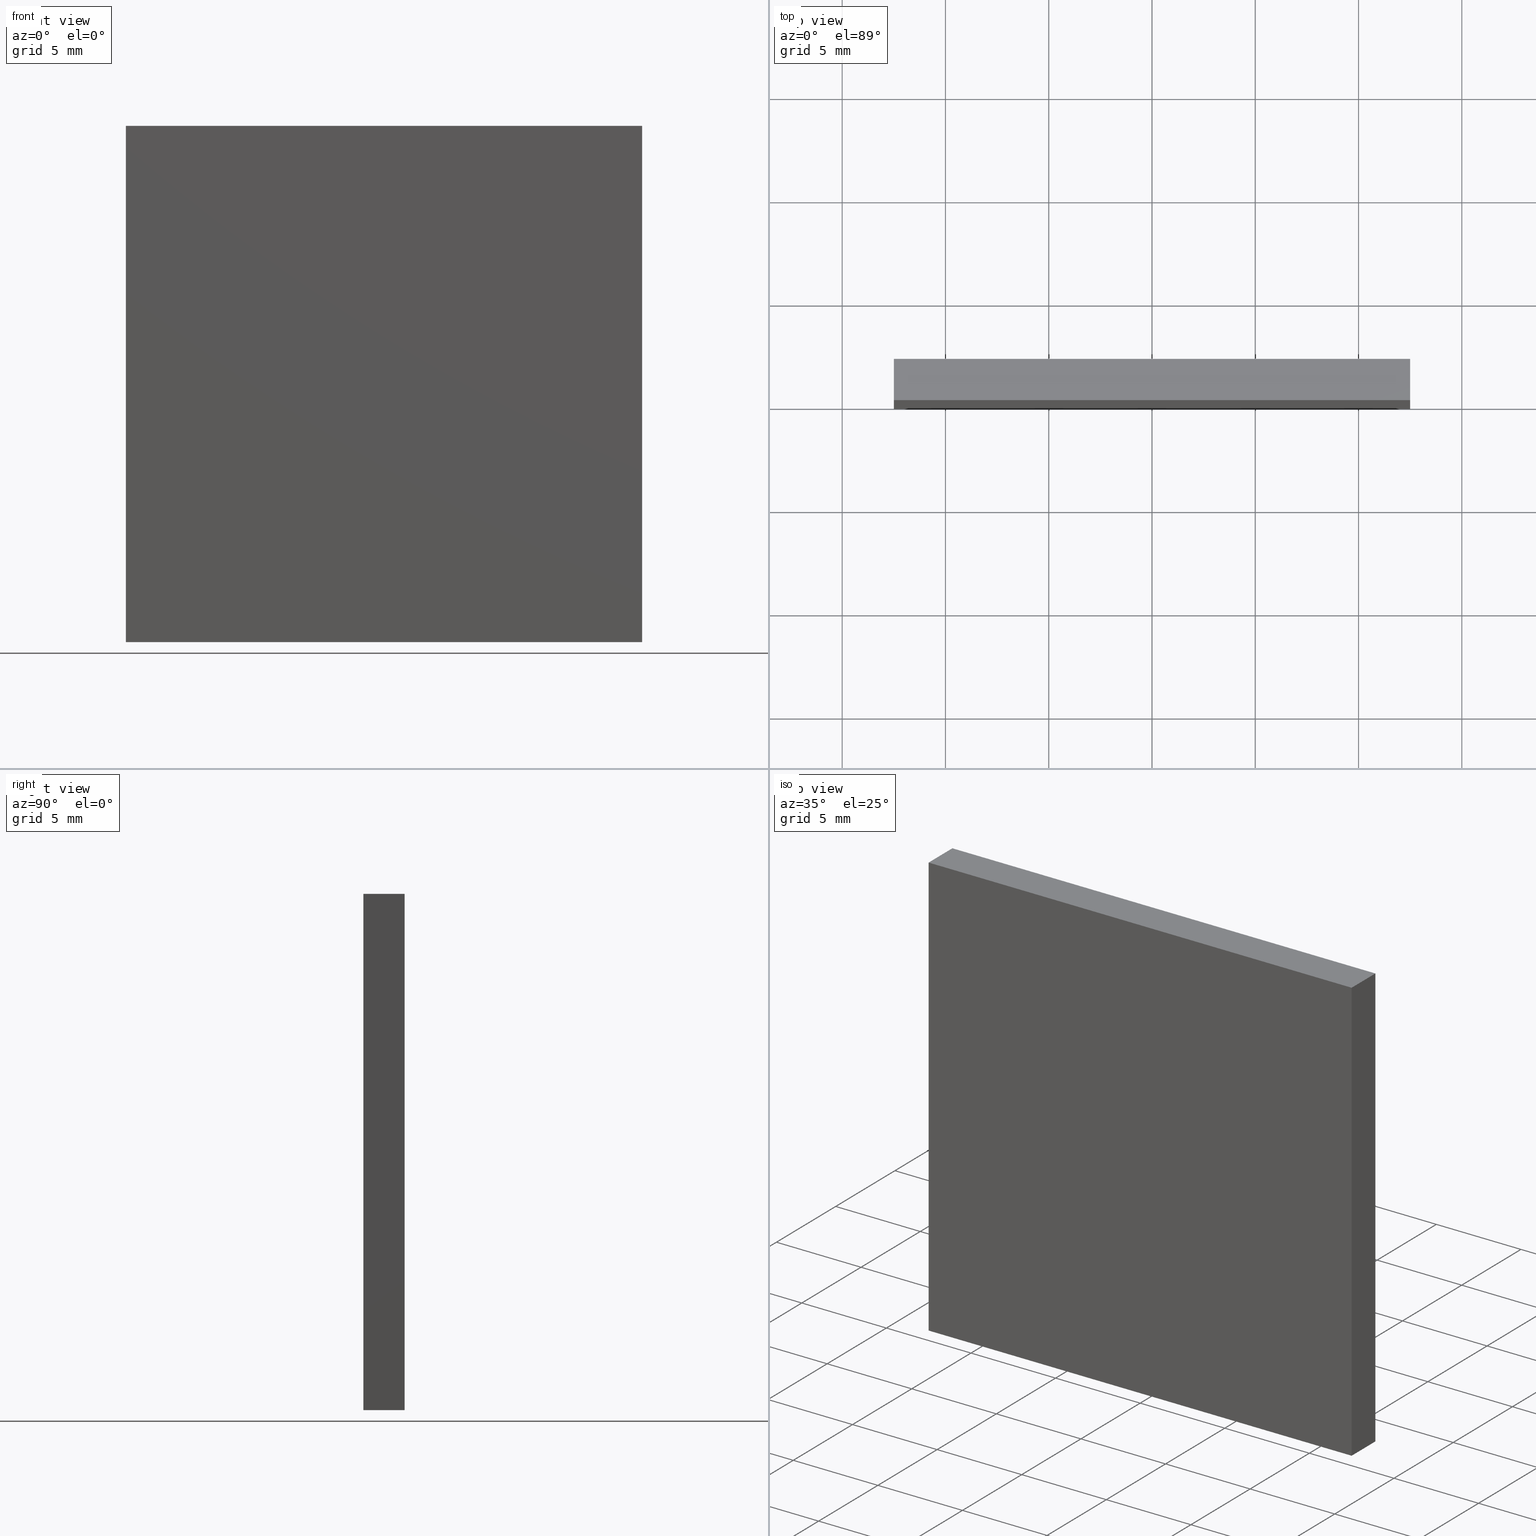
[diagram: canonical four-view strip — front | top / right | iso, engineering-drawing reading convention]
A machine part, canonical four-view strip (front | top / right | iso — engineering-drawing reading convention). The complete STEP part file that produces these views, byte-faithful:
ISO-10303-21;
HEADER;
FILE_DESCRIPTION (( 'STEP AP214' ),
    '1' );
FILE_NAME ('258512.STEP',
    '2019-08-07T02:19:36',
    ( 'user' ),
    ( '΢���й�' ),
    'SwSTEP 2.0',
    'SolidWorks 2016',
    '' );
FILE_SCHEMA (( 'AUTOMOTIVE_DESIGN' ));
ENDSEC;

DATA;
#1 = AXIS2_PLACEMENT_3D ( 'NONE', #153, #189, #122 ) ;
#2 = DIRECTION ( 'NONE',  ( -1.387778780781445700E-016, -0.0000000000000000000, -1.000000000000000000 ) ) ;
#3 = EDGE_LOOP ( 'NONE', ( #155, #35, #102, #99 ) ) ;
#4 = CARTESIAN_POINT ( 'NONE',  ( 12.50000000000000200, 0.0000000000000000000, -12.50000000000000000 ) ) ;
#5 =( NAMED_UNIT ( * ) SI_UNIT ( $, .STERADIAN. ) SOLID_ANGLE_UNIT ( ) );
#6 = FILL_AREA_STYLE_COLOUR ( '', #76 ) ;
#7 = ORIENTED_EDGE ( 'NONE', *, *, #62, .T. ) ;
#8 = STYLED_ITEM ( 'NONE', ( #149 ), #94 ) ;
#9 = CLOSED_SHELL ( 'NONE', ( #50, #24, #133, #36, #23, #22 ) ) ;
#10 = VECTOR ( 'NONE', #32, 1000.000000000000000 ) ;
#11 = FACE_OUTER_BOUND ( 'NONE', #67, .T. ) ;
#12 = LINE ( 'NONE', #126, #49 ) ;
#13 = SURFACE_SIDE_STYLE ('',( #20 ) ) ;
#14 = CARTESIAN_POINT ( 'NONE',  ( 12.50000000000000200, 2.000000000000000000, -12.50000000000000000 ) ) ;
#15 = DIRECTION ( 'NONE',  ( 0.0000000000000000000, 1.000000000000000000, 0.0000000000000000000 ) ) ;
#16 = ORIENTED_EDGE ( 'NONE', *, *, #84, .F. ) ;
#17 = CARTESIAN_POINT ( 'NONE',  ( 0.0000000000000000000, 0.0000000000000000000, 0.0000000000000000000 ) ) ;
#18 =( LENGTH_UNIT ( ) NAMED_UNIT ( * ) SI_UNIT ( .MILLI., .METRE. ) );
#19 = EDGE_LOOP ( 'NONE', ( #134, #86, #16, #187 ) ) ;
#20 = SURFACE_STYLE_FILL_AREA ( #121 ) ;
#21 = AXIS2_PLACEMENT_3D ( 'NONE', #14, #186, #72 ) ;
#22 = ADVANCED_FACE ( 'NONE', ( #44 ), #157, .F. ) ;
#23 = ADVANCED_FACE ( 'NONE', ( #34 ), #30, .T. ) ;
#24 = ADVANCED_FACE ( 'NONE', ( #87 ), #90, .F. ) ;
#25 = FACE_OUTER_BOUND ( 'NONE', #3, .T. ) ;
#26 = CARTESIAN_POINT ( 'NONE',  ( 12.50000000000000500, 2.000000000000000000, 12.50000000000000000 ) ) ;
#27 = CARTESIAN_POINT ( 'NONE',  ( -12.49999999999999800, 0.0000000000000000000, -12.50000000000000000 ) ) ;
#28 = LINE ( 'NONE', #27, #112 ) ;
#29 = CARTESIAN_POINT ( 'NONE',  ( -12.49999999999999500, 2.000000000000000000, 12.50000000000000000 ) ) ;
#30 = PLANE ( 'NONE',  #161 ) ;
#31 = PRESENTATION_LAYER_ASSIGNMENT (  '', '', ( #8 ) ) ;
#32 = DIRECTION ( 'NONE',  ( -0.0000000000000000000, -1.000000000000000000, -0.0000000000000000000 ) ) ;
#33 = ADVANCED_BREP_SHAPE_REPRESENTATION ( '258512', ( #94, #108 ), #66 ) ;
#34 = FACE_OUTER_BOUND ( 'NONE', #73, .T. ) ;
#35 = ORIENTED_EDGE ( 'NONE', *, *, #184, .F. ) ;
#36 = ADVANCED_FACE ( 'NONE', ( #11 ), #139, .F. ) ;
#37 = MECHANICAL_DESIGN_GEOMETRIC_PRESENTATION_REPRESENTATION (  '', ( #8 ), #47 ) ;
#38 = ORIENTED_EDGE ( 'NONE', *, *, #158, .T. ) ;
#39 = CARTESIAN_POINT ( 'NONE',  ( -12.49999999999999500, 2.000000000000000000, 12.50000000000000000 ) ) ;
#40 = FILL_AREA_STYLE_COLOUR ( '', #188 ) ;
#41 = STYLED_ITEM ( 'NONE', ( #85 ), #33 ) ;
#42 = CARTESIAN_POINT ( 'NONE',  ( -12.49999999999999800, 2.000000000000000000, -12.50000000000000000 ) ) ;
#43 = DIRECTION ( 'NONE',  ( 0.0000000000000000000, 1.000000000000000000, 0.0000000000000000000 ) ) ;
#44 = FACE_OUTER_BOUND ( 'NONE', #19, .T. ) ;
#45 = APPLICATION_PROTOCOL_DEFINITION ( 'draft international standard', 'automotive_design', 1998, #145 ) ;
#46 = VERTEX_POINT ( 'NONE', #42 ) ;
#47 =( GEOMETRIC_REPRESENTATION_CONTEXT ( 3 ) GLOBAL_UNCERTAINTY_ASSIGNED_CONTEXT ( ( #128 ) ) GLOBAL_UNIT_ASSIGNED_CONTEXT ( ( #202, #183, #70 ) ) REPRESENTATION_CONTEXT ( 'NONE', 'WORKASPACE' ) );
#48 = LINE ( 'NONE', #137, #132 ) ;
#49 = VECTOR ( 'NONE', #2, 1000.000000000000000 ) ;
#50 = ADVANCED_FACE ( 'NONE', ( #25 ), #93, .F. ) ;
#51 = PRESENTATION_LAYER_ASSIGNMENT (  '', '', ( #41 ) ) ;
#52 = DIRECTION ( 'NONE',  ( -1.000000000000000000, -0.0000000000000000000, -0.0000000000000000000 ) ) ;
#53 = DIRECTION ( 'NONE',  ( 1.387778780781445700E-016, 0.0000000000000000000, 1.000000000000000000 ) ) ;
#54 = CARTESIAN_POINT ( 'NONE',  ( -12.49999999999999500, 2.000000000000000000, 12.50000000000000000 ) ) ;
#55 = VECTOR ( 'NONE', #152, 1000.000000000000000 ) ;
#56 = DIRECTION ( 'NONE',  ( -0.0000000000000000000, -1.000000000000000000, -0.0000000000000000000 ) ) ;
#57 = PRODUCT_CONTEXT ( 'NONE', #148, 'mechanical' ) ;
#58 = VERTEX_POINT ( 'NONE', #106 ) ;
#59 = VECTOR ( 'NONE', #138, 1000.000000000000000 ) ;
#60 = MECHANICAL_DESIGN_GEOMETRIC_PRESENTATION_REPRESENTATION (  '', ( #41 ), #74 ) ;
#61 =( NAMED_UNIT ( * ) PLANE_ANGLE_UNIT ( ) SI_UNIT ( $, .RADIAN. ) );
#62 = EDGE_CURVE ( 'NONE', #131, #96, #65, .T. ) ;
#63 = LINE ( 'NONE', #168, #68 ) ;
#64 = EDGE_CURVE ( 'NONE', #179, #165, #28, .T. ) ;
#65 = LINE ( 'NONE', #29, #59 ) ;
#66 =( GEOMETRIC_REPRESENTATION_CONTEXT ( 3 ) GLOBAL_UNCERTAINTY_ASSIGNED_CONTEXT ( ( #97 ) ) GLOBAL_UNIT_ASSIGNED_CONTEXT ( ( #194, #61, #178 ) ) REPRESENTATION_CONTEXT ( 'NONE', 'WORKASPACE' ) );
#67 = EDGE_LOOP ( 'NONE', ( #113, #77, #182, #125 ) ) ;
#68 = VECTOR ( 'NONE', #52, 1000.000000000000000 ) ;
#69 = CARTESIAN_POINT ( 'NONE',  ( 12.50000000000000200, 2.000000000000000000, -12.50000000000000000 ) ) ;
#70 =( NAMED_UNIT ( * ) SI_UNIT ( $, .STERADIAN. ) SOLID_ANGLE_UNIT ( ) );
#71 = EDGE_CURVE ( 'NONE', #131, #58, #101, .T. ) ;
#72 = DIRECTION ( 'NONE',  ( 1.387778780781445700E-016, 0.0000000000000000000, 1.000000000000000000 ) ) ;
#73 = EDGE_LOOP ( 'NONE', ( #124, #38, #81, #7 ) ) ;
#74 =( GEOMETRIC_REPRESENTATION_CONTEXT ( 3 ) GLOBAL_UNCERTAINTY_ASSIGNED_CONTEXT ( ( #127 ) ) GLOBAL_UNIT_ASSIGNED_CONTEXT ( ( #18, #98, #5 ) ) REPRESENTATION_CONTEXT ( 'NONE', 'WORKASPACE' ) );
#75 = DIRECTION ( 'NONE',  ( 0.0000000000000000000, 0.0000000000000000000, 1.000000000000000000 ) ) ;
#76 = COLOUR_RGB ( '',1.000000000000000000, 1.000000000000000000, 1.000000000000000000 ) ;
#77 = ORIENTED_EDGE ( 'NONE', *, *, #196, .F. ) ;
#78 = LINE ( 'NONE', #176, #82 ) ;
#79 = DIRECTION ( 'NONE',  ( 0.0000000000000000000, 0.0000000000000000000, 1.000000000000000000 ) ) ;
#80 = AXIS2_PLACEMENT_3D ( 'NONE', #151, #103, #201 ) ;
#81 = ORIENTED_EDGE ( 'NONE', *, *, #89, .T. ) ;
#82 = VECTOR ( 'NONE', #115, 1000.000000000000000 ) ;
#83 = VERTEX_POINT ( 'NONE', #185 ) ;
#84 = EDGE_CURVE ( 'NONE', #165, #58, #192, .T. ) ;
#85 = PRESENTATION_STYLE_ASSIGNMENT (( #114 ) ) ;
#86 = ORIENTED_EDGE ( 'NONE', *, *, #163, .F. ) ;
#87 = FACE_OUTER_BOUND ( 'NONE', #162, .T. ) ;
#88 = CARTESIAN_POINT ( 'NONE',  ( -12.49999999999999800, 0.0000000000000000000, -12.50000000000000000 ) ) ;
#89 = EDGE_CURVE ( 'NONE', #46, #131, #107, .T. ) ;
#90 = PLANE ( 'NONE',  #181 ) ;
#91 = VECTOR ( 'NONE', #111, 1000.000000000000000 ) ;
#92 = CARTESIAN_POINT ( 'NONE',  ( -12.49999999999999800, 0.0000000000000000000, -12.50000000000000000 ) ) ;
#93 = PLANE ( 'NONE',  #21 ) ;
#94 = MANIFOLD_SOLID_BREP ( '͹̨-����1', #9 ) ;
#95 = ORIENTED_EDGE ( 'NONE', *, *, #89, .F. ) ;
#96 = VERTEX_POINT ( 'NONE', #26 ) ;
#97 = UNCERTAINTY_MEASURE_WITH_UNIT (LENGTH_MEASURE( 1.000000000000000100E-005 ), #194, 'distance_accuracy_value', 'NONE');
#98 =( NAMED_UNIT ( * ) PLANE_ANGLE_UNIT ( ) SI_UNIT ( $, .RADIAN. ) );
#99 = ORIENTED_EDGE ( 'NONE', *, *, #196, .T. ) ;
#100 = EDGE_CURVE ( 'NONE', #83, #179, #48, .T. ) ;
#101 = LINE ( 'NONE', #54, #197 ) ;
#102 = ORIENTED_EDGE ( 'NONE', *, *, #169, .F. ) ;
#103 = DIRECTION ( 'NONE',  ( 1.000000000000000000, 0.0000000000000000000, -1.387778780781445700E-016 ) ) ;
#104 = SURFACE_STYLE_USAGE ( .BOTH. , #13 ) ;
#105 = DIRECTION ( 'NONE',  ( -0.0000000000000000000, -1.000000000000000000, -0.0000000000000000000 ) ) ;
#106 = CARTESIAN_POINT ( 'NONE',  ( -12.49999999999999500, 0.0000000000000000000, 12.50000000000000000 ) ) ;
#107 = LINE ( 'NONE', #170, #55 ) ;
#108 = AXIS2_PLACEMENT_3D ( 'NONE', #17, #79, #159 ) ;
#109 = DIRECTION ( 'NONE',  ( 0.0000000000000000000, -0.0000000000000000000, 1.000000000000000000 ) ) ;
#110 = PRODUCT ( '258512', '258512', '', ( #57 ) ) ;
#111 = DIRECTION ( 'NONE',  ( 1.000000000000000000, 0.0000000000000000000, 0.0000000000000000000 ) ) ;
#112 = VECTOR ( 'NONE', #171, 1000.000000000000000 ) ;
#113 = ORIENTED_EDGE ( 'NONE', *, *, #163, .T. ) ;
#114 = SURFACE_STYLE_USAGE ( .BOTH. , #129 ) ;
#115 = DIRECTION ( 'NONE',  ( -0.0000000000000000000, -1.000000000000000000, -0.0000000000000000000 ) ) ;
#116 = PRODUCT_DEFINITION_SHAPE ( 'NONE', 'NONE',  #118 ) ;
#117 = EDGE_LOOP ( 'NONE', ( #175, #174, #95, #135 ) ) ;
#118 = PRODUCT_DEFINITION ( 'δ֪', '', #130, #190 ) ;
#119 = ORIENTED_EDGE ( 'NONE', *, *, #158, .F. ) ;
#120 = PLANE ( 'NONE',  #80 ) ;
#121 = FILL_AREA_STYLE ('',( #40 ) ) ;
#122 = DIRECTION ( 'NONE',  ( -1.000000000000000000, 0.0000000000000000000, -0.0000000000000000000 ) ) ;
#123 = CARTESIAN_POINT ( 'NONE',  ( -12.49999999999999800, 2.000000000000000000, -12.50000000000000000 ) ) ;
#124 = ORIENTED_EDGE ( 'NONE', *, *, #169, .T. ) ;
#125 = ORIENTED_EDGE ( 'NONE', *, *, #71, .T. ) ;
#126 = CARTESIAN_POINT ( 'NONE',  ( 12.50000000000000200, 2.000000000000000000, -12.50000000000000000 ) ) ;
#127 = UNCERTAINTY_MEASURE_WITH_UNIT (LENGTH_MEASURE( 1.000000000000000100E-005 ), #18, 'distance_accuracy_value', 'NONE');
#128 = UNCERTAINTY_MEASURE_WITH_UNIT (LENGTH_MEASURE( 1.000000000000000100E-005 ), #202, 'distance_accuracy_value', 'NONE');
#129 = SURFACE_SIDE_STYLE ('',( #164 ) ) ;
#130 = PRODUCT_DEFINITION_FORMATION_WITH_SPECIFIED_SOURCE ( '�κ�', '', #110, .NOT_KNOWN. ) ;
#131 = VERTEX_POINT ( 'NONE', #39 ) ;
#132 = VECTOR ( 'NONE', #136, 1000.000000000000000 ) ;
#133 = ADVANCED_FACE ( 'NONE', ( #200 ), #120, .F. ) ;
#134 = ORIENTED_EDGE ( 'NONE', *, *, #100, .F. ) ;
#135 = ORIENTED_EDGE ( 'NONE', *, *, #177, .T. ) ;
#136 = DIRECTION ( 'NONE',  ( -1.387778780781445700E-016, -0.0000000000000000000, -1.000000000000000000 ) ) ;
#137 = CARTESIAN_POINT ( 'NONE',  ( 12.50000000000000200, 0.0000000000000000000, -12.50000000000000000 ) ) ;
#138 = DIRECTION ( 'NONE',  ( 1.000000000000000000, 0.0000000000000000000, 0.0000000000000000000 ) ) ;
#139 = PLANE ( 'NONE',  #1 ) ;
#140 = VERTEX_POINT ( 'NONE', #69 ) ;
#141 = PRODUCT_RELATED_PRODUCT_CATEGORY ( 'part', '', ( #110 ) ) ;
#142 = CARTESIAN_POINT ( 'NONE',  ( 0.0000000000000000000, 0.0000000000000000000, 0.0000000000000000000 ) ) ;
#143 = CARTESIAN_POINT ( 'NONE',  ( 12.50000000000000200, 2.000000000000000000, -12.50000000000000000 ) ) ;
#144 = LINE ( 'NONE', #150, #91 ) ;
#145 = APPLICATION_CONTEXT ( 'automotive_design' ) ;
#146 = ORIENTED_EDGE ( 'NONE', *, *, #64, .T. ) ;
#147 = VECTOR ( 'NONE', #53, 1000.000000000000000 ) ;
#148 = APPLICATION_CONTEXT ( 'automotive_design' ) ;
#149 = PRESENTATION_STYLE_ASSIGNMENT (( #104 ) ) ;
#150 = CARTESIAN_POINT ( 'NONE',  ( -12.49999999999999500, 0.0000000000000000000, 12.50000000000000000 ) ) ;
#151 = CARTESIAN_POINT ( 'NONE',  ( -12.49999999999999800, 2.000000000000000000, -12.50000000000000000 ) ) ;
#152 = DIRECTION ( 'NONE',  ( 1.387778780781445700E-016, 0.0000000000000000000, 1.000000000000000000 ) ) ;
#153 = CARTESIAN_POINT ( 'NONE',  ( -12.49999999999999500, 2.000000000000000000, 12.50000000000000000 ) ) ;
#154 = CARTESIAN_POINT ( 'NONE',  ( 0.0000000000000000000, 2.000000000000000000, 0.0000000000000000000 ) ) ;
#155 = ORIENTED_EDGE ( 'NONE', *, *, #100, .T. ) ;
#156 = VECTOR ( 'NONE', #56, 1000.000000000000000 ) ;
#157 = PLANE ( 'NONE',  #195 ) ;
#158 = EDGE_CURVE ( 'NONE', #140, #46, #63, .T. ) ;
#159 = DIRECTION ( 'NONE',  ( 1.000000000000000000, 0.0000000000000000000, 0.0000000000000000000 ) ) ;
#160 = APPLICATION_PROTOCOL_DEFINITION ( 'draft international standard', 'automotive_design', 1998, #148 ) ;
#161 = AXIS2_PLACEMENT_3D ( 'NONE', #154, #15, #109 ) ;
#162 = EDGE_LOOP ( 'NONE', ( #146, #180, #119, #198 ) ) ;
#163 = EDGE_CURVE ( 'NONE', #58, #83, #144, .T. ) ;
#164 = SURFACE_STYLE_FILL_AREA ( #193 ) ;
#165 = VERTEX_POINT ( 'NONE', #88 ) ;
#166 = SHAPE_DEFINITION_REPRESENTATION ( #116, #33 ) ;
#167 = LINE ( 'NONE', #191, #156 ) ;
#168 = CARTESIAN_POINT ( 'NONE',  ( -12.49999999999999800, 2.000000000000000000, -12.50000000000000000 ) ) ;
#169 = EDGE_CURVE ( 'NONE', #96, #140, #12, .T. ) ;
#170 = CARTESIAN_POINT ( 'NONE',  ( -12.49999999999999800, 2.000000000000000000, -12.50000000000000000 ) ) ;
#171 = DIRECTION ( 'NONE',  ( -1.000000000000000000, -0.0000000000000000000, -0.0000000000000000000 ) ) ;
#172 = DIRECTION ( 'NONE',  ( 1.000000000000000000, 0.0000000000000000000, -0.0000000000000000000 ) ) ;
#173 = DIRECTION ( 'NONE',  ( 0.0000000000000000000, -0.0000000000000000000, 1.000000000000000000 ) ) ;
#174 = ORIENTED_EDGE ( 'NONE', *, *, #71, .F. ) ;
#175 = ORIENTED_EDGE ( 'NONE', *, *, #84, .T. ) ;
#176 = CARTESIAN_POINT ( 'NONE',  ( 12.50000000000000500, 2.000000000000000000, 12.50000000000000000 ) ) ;
#177 = EDGE_CURVE ( 'NONE', #46, #165, #167, .T. ) ;
#178 =( NAMED_UNIT ( * ) SI_UNIT ( $, .STERADIAN. ) SOLID_ANGLE_UNIT ( ) );
#179 = VERTEX_POINT ( 'NONE', #4 ) ;
#180 = ORIENTED_EDGE ( 'NONE', *, *, #177, .F. ) ;
#181 = AXIS2_PLACEMENT_3D ( 'NONE', #123, #75, #172 ) ;
#182 = ORIENTED_EDGE ( 'NONE', *, *, #62, .F. ) ;
#183 =( NAMED_UNIT ( * ) PLANE_ANGLE_UNIT ( ) SI_UNIT ( $, .RADIAN. ) );
#184 = EDGE_CURVE ( 'NONE', #140, #179, #199, .T. ) ;
#185 = CARTESIAN_POINT ( 'NONE',  ( 12.50000000000000500, 0.0000000000000000000, 12.50000000000000000 ) ) ;
#186 = DIRECTION ( 'NONE',  ( -1.000000000000000000, 0.0000000000000000000, 1.387778780781445700E-016 ) ) ;
#187 = ORIENTED_EDGE ( 'NONE', *, *, #64, .F. ) ;
#188 = COLOUR_RGB ( '',1.000000000000000000, 1.000000000000000000, 1.000000000000000000 ) ;
#189 = DIRECTION ( 'NONE',  ( 0.0000000000000000000, 0.0000000000000000000, -1.000000000000000000 ) ) ;
#190 = PRODUCT_DEFINITION_CONTEXT ( 'detailed design', #145, 'design' ) ;
#191 = CARTESIAN_POINT ( 'NONE',  ( -12.49999999999999800, 2.000000000000000000, -12.50000000000000000 ) ) ;
#192 = LINE ( 'NONE', #92, #147 ) ;
#193 = FILL_AREA_STYLE ('',( #6 ) ) ;
#194 =( LENGTH_UNIT ( ) NAMED_UNIT ( * ) SI_UNIT ( .MILLI., .METRE. ) );
#195 = AXIS2_PLACEMENT_3D ( 'NONE', #142, #43, #173 ) ;
#196 = EDGE_CURVE ( 'NONE', #96, #83, #78, .T. ) ;
#197 = VECTOR ( 'NONE', #105, 1000.000000000000000 ) ;
#198 = ORIENTED_EDGE ( 'NONE', *, *, #184, .T. ) ;
#199 = LINE ( 'NONE', #143, #10 ) ;
#200 = FACE_OUTER_BOUND ( 'NONE', #117, .T. ) ;
#201 = DIRECTION ( 'NONE',  ( -1.387778780781445700E-016, 0.0000000000000000000, -1.000000000000000000 ) ) ;
#202 =( LENGTH_UNIT ( ) NAMED_UNIT ( * ) SI_UNIT ( .MILLI., .METRE. ) );
ENDSEC;
END-ISO-10303-21;
